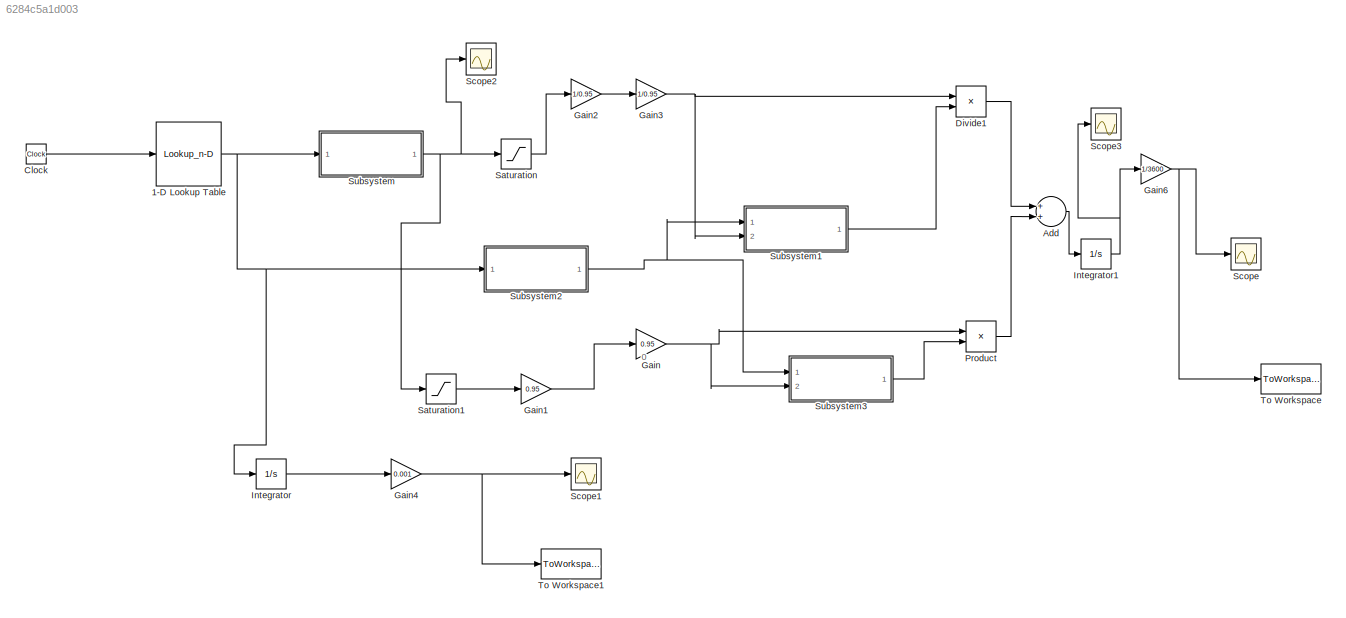
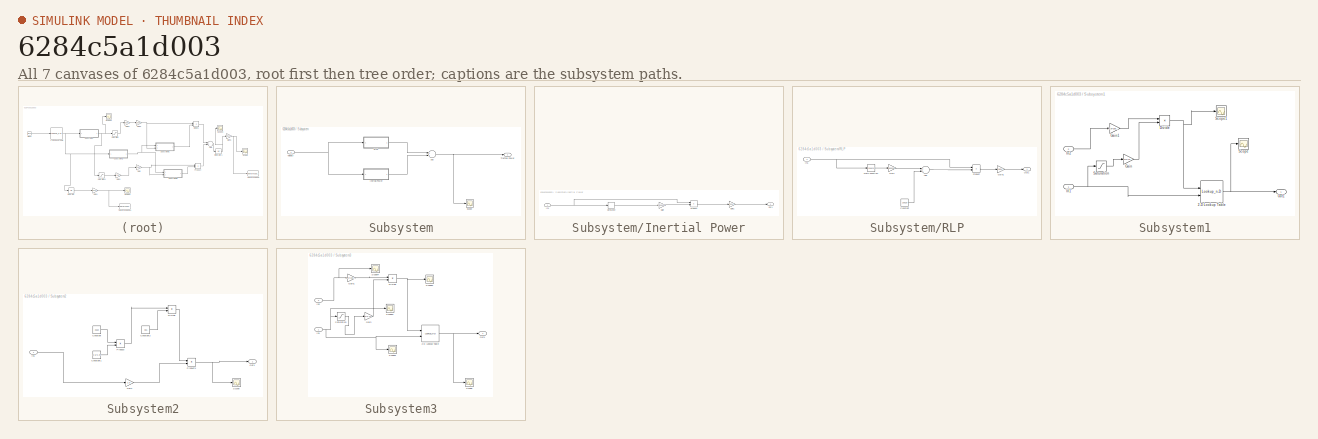
[diagram: thumbnail index - all 7 canvases of the model, root first then tree order]
MODEL slx_6284c5a1d003
KIND model
CONFIG AbsTol = auto
CONFIG EnableMultiTasking = on
CONFIG FixedStep = 1
CONFIG MaxStep = auto
CONFIG MinStep = auto
CONFIG RelTol = 1e-3
CONFIG SampleTimeConstraint = Unconstrained
CONFIG Solver = ode4
CONFIG SolverName = ode4
CONFIG StartTime = 0.0
CONFIG StopTime = 765
BLOCK [Lookup_n-D] 1-D Lookup Table
  BreakpointsForDimension1 = t
  InternalRulePriority = Speed
  NumberOfTableDimensions = 1
  Ports = [1, 1]
  RndMeth = Simplest
  Table = V
BLOCK [Sum] Add
  InputSameDT = off
  OutDataTypeStr = Inherit: Inherit via internal rule
  Ports = [2, 1]
  SaturateOnIntegerOverflow = off
BLOCK [Clock] Clock
  DisplayTime = on
BLOCK [Product] Divide1
  InputSameDT = off
  Inputs = */
  OutDataTypeStr = Inherit: Inherit via internal rule
  Ports = [2, 1]
  RndMeth = Floor
  SaturateOnIntegerOverflow = off
BLOCK [Gain] Gain
  Gain = 0.95
  OutDataTypeStr = Inherit: Inherit via internal rule
  ParamDataTypeStr = Inherit: Inherit via internal rule
  SaturateOnIntegerOverflow = off
BLOCK [Gain] Gain1
  Gain = 0.95
  OutDataTypeStr = Inherit: Inherit via internal rule
  ParamDataTypeStr = Inherit: Inherit via internal rule
  SaturateOnIntegerOverflow = off
BLOCK [Gain] Gain2
  Gain = 1/0.95
  OutDataTypeStr = Inherit: Inherit via internal rule
  ParamDataTypeStr = Inherit: Inherit via internal rule
  SaturateOnIntegerOverflow = off
BLOCK [Gain] Gain3
  Gain = 1/0.95
  OutDataTypeStr = Inherit: Inherit via internal rule
  ParamDataTypeStr = Inherit: Inherit via internal rule
  SaturateOnIntegerOverflow = off
BLOCK [Gain] Gain4
  Gain = 0.001
  OutDataTypeStr = Inherit: Inherit via internal rule
  ParamDataTypeStr = Inherit: Inherit via internal rule
  SaturateOnIntegerOverflow = off
BLOCK [Gain] Gain6
  Gain = 1/3600
  OutDataTypeStr = Inherit: Inherit via internal rule
  ParamDataTypeStr = Inherit: Inherit via internal rule
  SaturateOnIntegerOverflow = off
BLOCK [Integrator] Integrator
  Ports = [1, 1]
BLOCK [Integrator] Integrator1
  Ports = [1, 1]
BLOCK [Product] Product
  InputSameDT = off
  OutDataTypeStr = Inherit: Inherit via internal rule
  Ports = [2, 1]
  RndMeth = Floor
  SaturateOnIntegerOverflow = off
BLOCK [Saturate] Saturation
  InputPortMap = u0
  LowerLimit = 0
  Ports = [1, 1]
  UpperLimit = inf
BLOCK [Saturate] Saturation1
  InputPortMap = u0
  LowerLimit = -inf
  Ports = [1, 1]
  UpperLimit = 0
BLOCK [Scope] Scope
  NumInputPorts = 1
  Ports = [1]
  ScopeSpecificationString = Simulink.scopes.TimeScopeBlockCfg('CurrentConfiguration', extmgr.ConfigurationSet(extmgr.Configuration('Core','General UI',true),extmgr.Configuration('Core','Source UI',true),extmgr.Configuration('Sources','WiredSimulink',true,'DataLoggingLimitDataPoints',true,'DataLoggingSaveFormat','Array','DataLoggingDecimation','1','DataLoggingDecimateData',true),extmgr.Configuration('Visuals','Time Domain',tr...<+1518ch>
BLOCK [Scope] Scope1
  NumInputPorts = 1
  Ports = [1]
  ScopeSpecificationString = Simulink.scopes.TimeScopeBlockCfg('CurrentConfiguration', extmgr.ConfigurationSet(extmgr.Configuration('Core','General UI',true),extmgr.Configuration('Core','Source UI',true),extmgr.Configuration('Sources','WiredSimulink',true,'DataLoggingVariableName','ScopeData1','DataLoggingLimitDataPoints',true,'DataLoggingSaveFormat','Array','DataLoggingDecimation','1','DataLoggingDecimateData',true),extmgr.C...<+1548ch>
BLOCK [Scope] Scope2
  NumInputPorts = 1
  Ports = [1]
  ScopeSpecificationString = Simulink.scopes.TimeScopeBlockCfg('CurrentConfiguration', extmgr.ConfigurationSet(extmgr.Configuration('Core','General UI',true),extmgr.Configuration('Core','Source UI',true),extmgr.Configuration('Sources','WiredSimulink',true,'DataLoggingLimitDataPoints',true,'DataLoggingSaveFormat','Array','DataLoggingDecimation','1','DataLoggingDecimateData',true,'DataLoggingVariableName','ScopeData3'),extmgr.C...<+1554ch>
BLOCK [Scope] Scope3
  NumInputPorts = 1
  Ports = [1]
  ScopeSpecificationString = Simulink.scopes.TimeScopeBlockCfg('CurrentConfiguration', extmgr.ConfigurationSet(extmgr.Configuration('Core','General UI',true),extmgr.Configuration('Core','Source UI',true),extmgr.Configuration('Sources','WiredSimulink',true,'DataLoggingLimitDataPoints',true,'DataLoggingSaveFormat','Array','DataLoggingDecimation','1','DataLoggingDecimateData',true,'DataLoggingVariableName','ScopeData4'),extmgr.C...<+1576ch>
BLOCK [SubSystem] Subsystem
  Ports = [1, 1]
  RequestExecContextInheritance = off
  Variant = off
BLOCK [Sum] Subsystem/Add
  InputSameDT = off
  OutDataTypeStr = Inherit: Inherit via internal rule
  Ports = [2, 1]
  SaturateOnIntegerOverflow = off
BLOCK [SubSystem] Subsystem/Inertial Power
  Ports = [1, 1]
  RequestExecContextInheritance = off
  Variant = off
BLOCK [Derivative] Subsystem/Inertial Power/Derivative
BLOCK [Gain] Subsystem/Inertial Power/Gain
  Gain = 2836.015
  OutDataTypeStr = Inherit: Inherit via internal rule
  ParamDataTypeStr = Inherit: Inherit via internal rule
  SaturateOnIntegerOverflow = off
BLOCK [Gain] Subsystem/Inertial Power/Gain1
  Gain = 0.001
  OutDataTypeStr = Inherit: Inherit via internal rule
  ParamDataTypeStr = Inherit: Inherit via internal rule
  SaturateOnIntegerOverflow = off
BLOCK [Inport] Subsystem/Inertial Power/In1
  IconDisplay = Port number
BLOCK [Outport] Subsystem/Inertial Power/Out1
  IconDisplay = Port number
BLOCK [Product] Subsystem/Inertial Power/Product
  InputSameDT = off
  OutDataTypeStr = Inherit: Inherit via internal rule
  Ports = [2, 1]
  RndMeth = Floor
  SaturateOnIntegerOverflow = off
BLOCK [SubSystem] Subsystem/RLP
  Ports = [1, 1]
  RequestExecContextInheritance = off
  Variant = off
BLOCK [Sum] Subsystem/RLP/Add
  InputSameDT = off
  OutDataTypeStr = Inherit: Inherit via internal rule
  Ports = [2, 1]
  SaturateOnIntegerOverflow = off
BLOCK [Constant] Subsystem/RLP/Constant
  Value = 290.39
BLOCK [Gain] Subsystem/RLP/Gain
  Gain = 0.55539
  OutDataTypeStr = Inherit: Inherit via internal rule
  ParamDataTypeStr = Inherit: Inherit via internal rule
  SaturateOnIntegerOverflow = off
BLOCK [Gain] Subsystem/RLP/Gain1
  Gain = 0.001
  OutDataTypeStr = Inherit: Inherit via internal rule
  ParamDataTypeStr = Inherit: Inherit via internal rule
  SaturateOnIntegerOverflow = off
BLOCK [Inport] Subsystem/RLP/In1
  IconDisplay = Port number
BLOCK [Math] Subsystem/RLP/Math Function
  Operator = square
  Ports = [1, 1]
BLOCK [Outport] Subsystem/RLP/Out1
  IconDisplay = Port number
BLOCK [Product] Subsystem/RLP/Product
  InputSameDT = off
  OutDataTypeStr = Inherit: Inherit via internal rule
  Ports = [2, 1]
  RndMeth = Floor
  SaturateOnIntegerOverflow = off
BLOCK [Scope] Subsystem/Scope
  NumInputPorts = 1
  Ports = [1]
  ScopeSpecificationString = Simulink.scopes.TimeScopeBlockCfg('CurrentConfiguration', extmgr.ConfigurationSet(extmgr.Configuration('Core','General UI',true),extmgr.Configuration('Core','Source UI',true),extmgr.Configuration('Sources','WiredSimulink',true,'DataLoggingVariableName','ScopeData5'),extmgr.Configuration('Visuals','Time Domain',true,'SerializedDisplays',{struct('MinYLimReal','-79.79983','MaxYLimReal','65.80994','YL...<+1423ch>
BLOCK [Outport] Subsystem/Tractive Power
  IconDisplay = Port number
BLOCK [Inport] Subsystem/Velocity
  IconDisplay = Port number
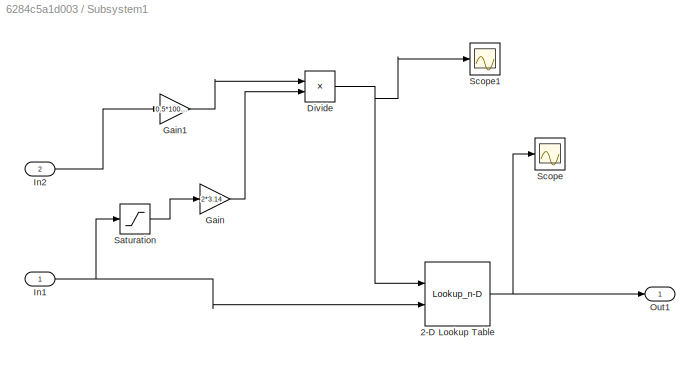
BLOCK [SubSystem] Subsystem1
  Ports = [2, 1]
  RequestExecContextInheritance = off
  Variant = off
BLOCK [Lookup_n-D] Subsystem1/2-D Lookup Table
  BreakpointsForDimension1 = mc.trq_eff_index
  BreakpointsForDimension2 = mc.rpm_eff_index
  InternalRulePriority = Speed
  Ports = [2, 1]
  RndMeth = Simplest
  Table = mc.eff_trq_map'
BLOCK [Product] Subsystem1/Divide
  InputSameDT = off
  Inputs = */
  OutDataTypeStr = Inherit: Inherit via internal rule
  Ports = [2, 1]
  RndMeth = Floor
  SaturateOnIntegerOverflow = off
BLOCK [Gain] Subsystem1/Gain
  Gain = 2*3.14
  OutDataTypeStr = Inherit: Inherit via internal rule
  ParamDataTypeStr = Inherit: Inherit via internal rule
  SaturateOnIntegerOverflow = off
BLOCK [Gain] Subsystem1/Gain1
  Gain = 0.5*1000*60
  OutDataTypeStr = Inherit: Inherit via internal rule
  ParamDataTypeStr = Inherit: Inherit via internal rule
  SaturateOnIntegerOverflow = off
BLOCK [Inport] Subsystem1/In1
  IconDisplay = Port number
BLOCK [Inport] Subsystem1/In2
  IconDisplay = Port number
  Port = 2
BLOCK [Outport] Subsystem1/Out1
  IconDisplay = Port number
BLOCK [Saturate] Subsystem1/Saturation
  InputPortMap = u0
  LowerLimit = 0.1
  Ports = [1, 1]
  UpperLimit = 8000
BLOCK [Scope] Subsystem1/Scope
  NumInputPorts = 1
  Ports = [1]
  ScopeSpecificationString = Simulink.scopes.TimeScopeBlockCfg('CurrentConfiguration', extmgr.ConfigurationSet(extmgr.Configuration('Core','General UI',true),extmgr.Configuration('Core','Source UI',true),extmgr.Configuration('Sources','WiredSimulink',true,'DataLoggingVariableName','ScopeData7'),extmgr.Configuration('Visuals','Time Domain',true,'SerializedDisplays',{struct('MinYLimReal','0.28952','MaxYLimReal','0.9943','YLabel...<+1424ch>
BLOCK [Scope] Subsystem1/Scope1
  NumInputPorts = 1
  Ports = [1]
  ScopeSpecificationString = Simulink.scopes.TimeScopeBlockCfg('CurrentConfiguration', extmgr.ConfigurationSet(extmgr.Configuration('Core','General UI',true),extmgr.Configuration('Core','Source UI',true),extmgr.Configuration('Sources','WiredSimulink',true,'DataLoggingVariableName','ScopeData8'),extmgr.Configuration('Visuals','Time Domain',true,'SerializedDisplays',{struct('MinYLimReal','-14.3554','MaxYLimReal','129.19857','YL...<+1428ch>
BLOCK [SubSystem] Subsystem2
  Ports = [1, 1]
  RequestExecContextInheritance = off
  Variant = off
BLOCK [Constant] Subsystem2/Constant
  Value = 2660
BLOCK [Constant] Subsystem2/Constant1
  Value = 3.5*2.29
BLOCK [Constant] Subsystem2/Constant2
  Value = 381
BLOCK [Product] Subsystem2/Divide
  InputSameDT = off
  Inputs = */
  OutDataTypeStr = Inherit: Inherit via internal rule
  Ports = [2, 1]
  RndMeth = Floor
  SaturateOnIntegerOverflow = off
BLOCK [Gain] Subsystem2/Gain
  Gain = 3.6
  OutDataTypeStr = Inherit: Inherit via internal rule
  ParamDataTypeStr = Inherit: Inherit via internal rule
  SaturateOnIntegerOverflow = off
BLOCK [Inport] Subsystem2/In1
  IconDisplay = Port number
BLOCK [Outport] Subsystem2/Out1
  IconDisplay = Port number
BLOCK [Product] Subsystem2/Product
  InputSameDT = off
  OutDataTypeStr = Inherit: Inherit via internal rule
  Ports = [2, 1]
  RndMeth = Floor
  SaturateOnIntegerOverflow = off
BLOCK [Product] Subsystem2/Product1
  InputSameDT = off
  OutDataTypeStr = Inherit: Inherit via internal rule
  Ports = [2, 1]
  RndMeth = Floor
  SaturateOnIntegerOverflow = off
BLOCK [Scope] Subsystem2/Scope
  NumInputPorts = 1
  Ports = [1]
  ScopeSpecificationString = Simulink.scopes.TimeScopeBlockCfg('CurrentConfiguration', extmgr.ConfigurationSet(extmgr.Configuration('Core','General UI',true),extmgr.Configuration('Core','Source UI',true),extmgr.Configuration('Sources','WiredSimulink',true,'DataLoggingVariableName','ScopeData2'),extmgr.Configuration('Visuals','Time Domain',true,'SerializedDisplays',{struct('MinYLimReal','-674.28874','MaxYLimReal','6068.59867',...<+1427ch>
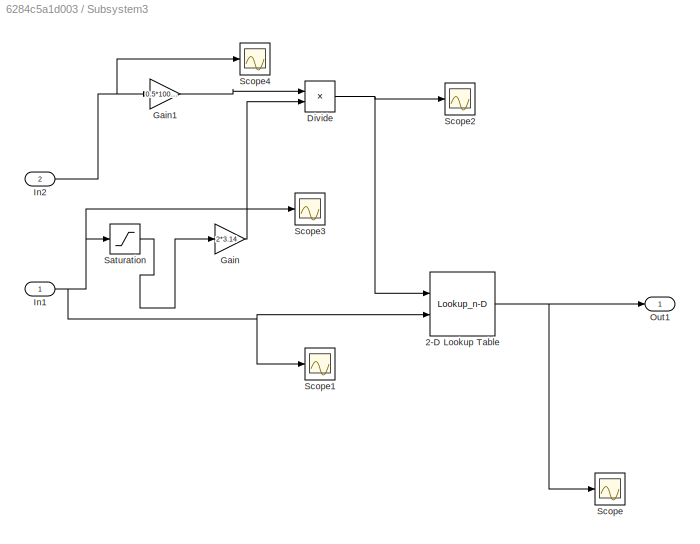
BLOCK [SubSystem] Subsystem3
  Ports = [2, 1]
  RequestExecContextInheritance = off
  Variant = off
BLOCK [Lookup_n-D] Subsystem3/2-D Lookup Table
  BreakpointsForDimension1 = mc.trq_eff_index_gen
  BreakpointsForDimension2 = mc.rpm_eff_index_gen
  InternalRulePriority = Speed
  Ports = [2, 1]
  RndMeth = Simplest
  Table = mc.eff_trq_map_gen'
BLOCK [Product] Subsystem3/Divide
  InputSameDT = off
  Inputs = */
  OutDataTypeStr = Inherit: Inherit via internal rule
  Ports = [2, 1]
  RndMeth = Floor
  SaturateOnIntegerOverflow = off
BLOCK [Gain] Subsystem3/Gain
  Gain = 2*3.14
  OutDataTypeStr = Inherit: Inherit via internal rule
  ParamDataTypeStr = Inherit: Inherit via internal rule
  SaturateOnIntegerOverflow = off
BLOCK [Gain] Subsystem3/Gain1
  Gain = 0.5*1000*60
  OutDataTypeStr = Inherit: Inherit via internal rule
  ParamDataTypeStr = Inherit: Inherit via internal rule
  SaturateOnIntegerOverflow = off
BLOCK [Inport] Subsystem3/In1
  IconDisplay = Port number
BLOCK [Inport] Subsystem3/In2
  IconDisplay = Port number
  Port = 2
BLOCK [Outport] Subsystem3/Out1
  IconDisplay = Port number
BLOCK [Saturate] Subsystem3/Saturation
  InputPortMap = u0
  LowerLimit = 0.1
  Ports = [1, 1]
  UpperLimit = 8000
BLOCK [Scope] Subsystem3/Scope
  NumInputPorts = 1
  Ports = [1]
  ScopeSpecificationString = Simulink.scopes.TimeScopeBlockCfg('CurrentConfiguration', extmgr.ConfigurationSet(extmgr.Configuration('Core','General UI',true),extmgr.Configuration('Core','Source UI',true),extmgr.Configuration('Sources','WiredSimulink',true,'DataLoggingVariableName','ScopeData6'),extmgr.Configuration('Visuals','Time Domain',true,'SerializedDisplays',{struct('MinYLimReal','0.291','MaxYLimReal','0.98101','YLabelR...<+1420ch>
BLOCK [Scope] Subsystem3/Scope1
  NumInputPorts = 1
  Ports = [1]
  ScopeSpecificationString = Simulink.scopes.TimeScopeBlockCfg('CurrentConfiguration', extmgr.ConfigurationSet(extmgr.Configuration('Core','General UI',true),extmgr.Configuration('Core','Source UI',true),extmgr.Configuration('Sources','WiredSimulink',true,'DataLoggingVariableName','ScopeData9'),extmgr.Configuration('Visuals','Time Domain',true,'SerializedDisplays',{struct('MinYLimReal','-1962059.7437','MaxYLimReal','218007.03...<+1470ch>
BLOCK [Scope] Subsystem3/Scope2
  NumInputPorts = 1
  Ports = [1]
  ScopeSpecificationString = Simulink.scopes.TimeScopeBlockCfg('CurrentConfiguration', extmgr.ConfigurationSet(extmgr.Configuration('Core','General UI',true),extmgr.Configuration('Core','Source UI',true),extmgr.Configuration('Sources','WiredSimulink',true,'DataLoggingVariableName','ScopeData10'),extmgr.Configuration('Visuals','Time Domain',true,'SerializedDisplays',{struct('MinYLimReal','-91.44619','MaxYLimReal','10.16069','Y...<+1427ch>
BLOCK [Scope] Subsystem3/Scope3
  NumInputPorts = 1
  Ports = [1]
  ScopeSpecificationString = Simulink.scopes.TimeScopeBlockCfg('CurrentConfiguration', extmgr.ConfigurationSet(extmgr.Configuration('Core','General UI',true),extmgr.Configuration('Core','Source UI',true),extmgr.Configuration('Sources','WiredSimulink',true,'DataLoggingVariableName','ScopeData11'),extmgr.Configuration('Visuals','Time Domain',true,'SerializedDisplays',{struct('MinYLimReal','-674.28874','MaxYLimReal','6068.59867'...<+1436ch>
BLOCK [Scope] Subsystem3/Scope4
  NumInputPorts = 1
  Ports = [1]
  ScopeSpecificationString = Simulink.scopes.TimeScopeBlockCfg('CurrentConfiguration', extmgr.ConfigurationSet(extmgr.Configuration('Core','General UI',true),extmgr.Configuration('Core','Source UI',true),extmgr.Configuration('Sources','WiredSimulink',true,'DataLoggingVariableName','ScopeData12'),extmgr.Configuration('Visuals','Time Domain',true,'SerializedDisplays',{struct('MinYLimReal','-66.23782','MaxYLimReal','7.35976','YL...<+1422ch>
BLOCK [ToWorkspace] To Workspace
  FixptAsFi = on
  MaxDataPoints = inf
  Ports = [1]
  SampleTime = -1
  Save2DSignal = 3-D array (concatenate along third dimension)
  SaveFormat = Timeseries
  VariableName = energydemand_highway
BLOCK [ToWorkspace] To Workspace1
  FixptAsFi = on
  MaxDataPoints = inf
  Ports = [1]
  SampleTime = -1
  Save2DSignal = 3-D array (concatenate along third dimension)
  SaveFormat = Timeseries
  VariableName = simout1
ANNOTATION (root): 0
NET 1-D Lookup Table:1 -> Integrator:1, Subsystem2:1, Subsystem:1
LINE Add:1 -> Integrator1:1
LINE Clock:1 -> 1-D Lookup Table:1
LINE Divide1:1 -> Add:1
LINE Gain1:1 -> Gain:1
LINE Gain2:1 -> Gain3:1
NET Gain3:1 -> Divide1:1, Subsystem1:2
NET Gain4:1 -> Scope1:1, To Workspace1:1
NET Gain6:1 -> Scope:1, To Workspace:1
NET Gain:1 -> Product:1, Subsystem3:2
NET Integrator1:1 -> Gain6:1, Scope3:1
LINE Integrator:1 -> Gain4:1
LINE Product:1 -> Add:2
LINE Saturation1:1 -> Gain1:1
LINE Saturation:1 -> Gain2:1
NET Subsystem/Add:1 -> Subsystem/Scope:1, Subsystem/Tractive Power:1
LINE Subsystem/Inertial Power/Derivative:1 -> Subsystem/Inertial Power/Gain:1
LINE Subsystem/Inertial Power/Gain1:1 -> Subsystem/Inertial Power/Out1:1
LINE Subsystem/Inertial Power/Gain:1 -> Subsystem/Inertial Power/Product:2
NET Subsystem/Inertial Power/In1:1 -> Subsystem/Inertial Power/Derivative:1, Subsystem/Inertial Power/Product:1
LINE Subsystem/Inertial Power/Product:1 -> Subsystem/Inertial Power/Gain1:1
LINE Subsystem/Inertial Power:1 -> Subsystem/Add:2
LINE Subsystem/RLP/Add:1 -> Subsystem/RLP/Product:2
LINE Subsystem/RLP/Constant:1 -> Subsystem/RLP/Add:2
LINE Subsystem/RLP/Gain1:1 -> Subsystem/RLP/Out1:1
LINE Subsystem/RLP/Gain:1 -> Subsystem/RLP/Add:1
NET Subsystem/RLP/In1:1 -> Subsystem/RLP/Math Function:1, Subsystem/RLP/Product:1
LINE Subsystem/RLP/Math Function:1 -> Subsystem/RLP/Gain:1
LINE Subsystem/RLP/Product:1 -> Subsystem/RLP/Gain1:1
LINE Subsystem/RLP:1 -> Subsystem/Add:1
NET Subsystem/Velocity:1 -> Subsystem/Inertial Power:1, Subsystem/RLP:1
NET Subsystem1/2-D Lookup Table:1 -> Subsystem1/Out1:1, Subsystem1/Scope:1
NET Subsystem1/Divide:1 -> Subsystem1/2-D Lookup Table:1, Subsystem1/Scope1:1
LINE Subsystem1/Gain1:1 -> Subsystem1/Divide:1
LINE Subsystem1/Gain:1 -> Subsystem1/Divide:2
NET Subsystem1/In1:1 -> Subsystem1/2-D Lookup Table:2, Subsystem1/Saturation:1
LINE Subsystem1/In2:1 -> Subsystem1/Gain1:1
LINE Subsystem1/Saturation:1 -> Subsystem1/Gain:1
LINE Subsystem1:1 -> Divide1:2
LINE Subsystem2/Constant1:1 -> Subsystem2/Product:2
LINE Subsystem2/Constant2:1 -> Subsystem2/Divide:2
LINE Subsystem2/Constant:1 -> Subsystem2/Product:1
LINE Subsystem2/Divide:1 -> Subsystem2/Product1:1
LINE Subsystem2/Gain:1 -> Subsystem2/Product1:2
LINE Subsystem2/In1:1 -> Subsystem2/Gain:1
NET Subsystem2/Product1:1 -> Subsystem2/Out1:1, Subsystem2/Scope:1
LINE Subsystem2/Product:1 -> Subsystem2/Divide:1
NET Subsystem2:1 -> Subsystem1:1, Subsystem3:1
NET Subsystem3/2-D Lookup Table:1 -> Subsystem3/Out1:1, Subsystem3/Scope:1
NET Subsystem3/Divide:1 -> Subsystem3/2-D Lookup Table:1, Subsystem3/Scope2:1
LINE Subsystem3/Gain1:1 -> Subsystem3/Divide:1
LINE Subsystem3/Gain:1 -> Subsystem3/Divide:2
NET Subsystem3/In1:1 -> Subsystem3/2-D Lookup Table:2, Subsystem3/Saturation:1, Subsystem3/Scope1:1, Subsystem3/Scope3:1
NET Subsystem3/In2:1 -> Subsystem3/Gain1:1, Subsystem3/Scope4:1
LINE Subsystem3/Saturation:1 -> Subsystem3/Gain:1
LINE Subsystem3:1 -> Product:2
NET Subsystem:1 -> Saturation1:1, Saturation:1, Scope2:1
note: NET lines group one-source signal fan-out (src -> all destinations, sorted); 1:1 wires keep LINE
